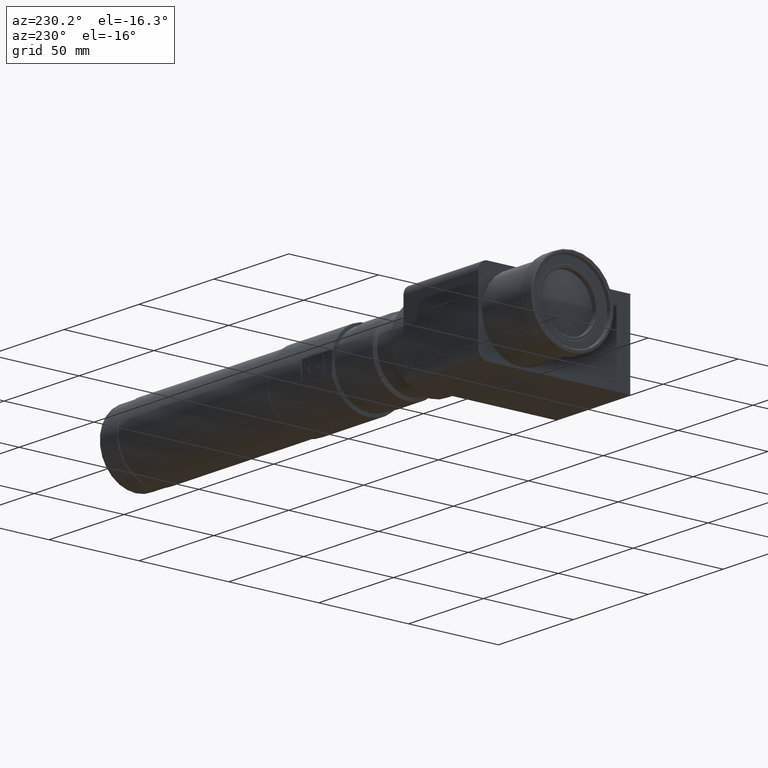
[diagram: clean part render]
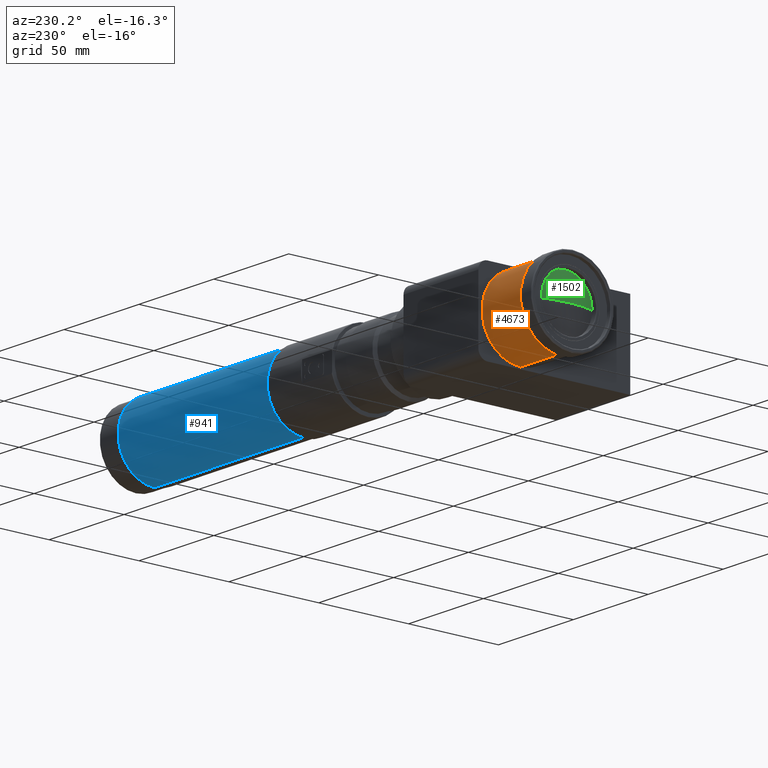
[diagram: same view with three faces highlighted in distinct colors, each labeled with its STEP entity id]
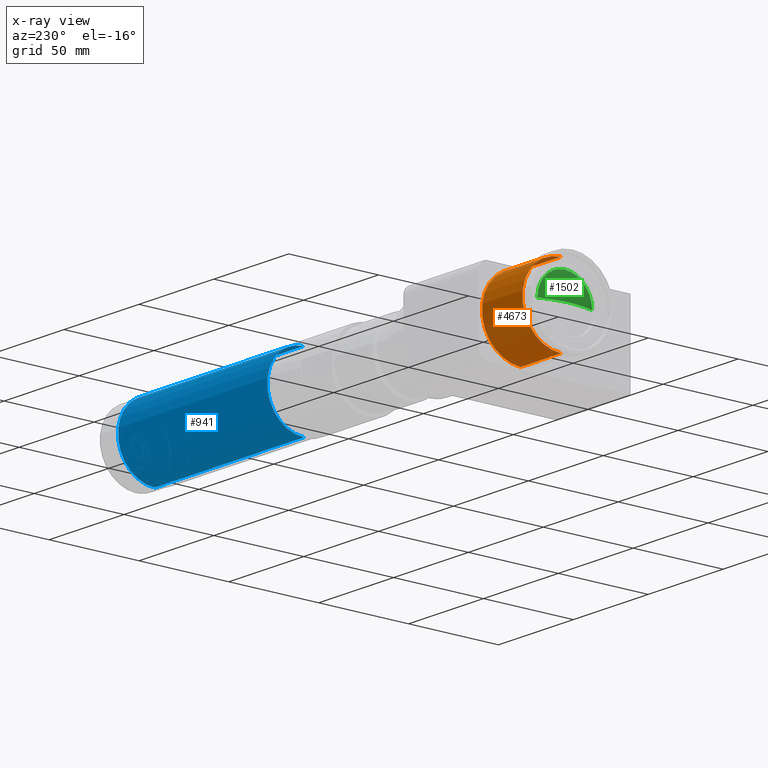
[diagram: x-ray of the same camera — body ghosted, the three highlighted faces saturated]
A machine part, auxiliary view with three faces highlighted in distinct colors.
The next image is the same camera in x-ray (body ghosted, the three faces saturated) — at least one of them is partly hidden behind the body in this view.
Their STEP definitions:

[orange] entity #4673 — the highlighted cylindrical surface (partial cylindrical patch) has radius 21.5 mm, axis along (1, -0, -0).
#85 = CIRCLE ( 'NONE', #1812, 21.50000000000170500 ) ;
#108 = FACE_OUTER_BOUND ( 'NONE', #1068, .T. ) ;
#332 = VECTOR ( 'NONE', #1806, 1000.000000000000000 ) ;
#679 = DIRECTION ( 'NONE',  ( 1.000000000000000000, -0.0000000000000000000, -0.0000000000000000000 ) ) ;
#750 = ORIENTED_EDGE ( 'NONE', *, *, #992, .T. ) ;
#914 = ORIENTED_EDGE ( 'NONE', *, *, #1069, .F. ) ;
#934 = DIRECTION ( 'NONE',  ( 0.0000000000000000000, 0.0000000000000000000, -1.000000000000000000 ) ) ;
#992 = EDGE_CURVE ( 'NONE', #2932, #1675, #85, .T. ) ;
#1060 = VERTEX_POINT ( 'NONE', #1981 ) ;
#1068 = EDGE_LOOP ( 'NONE', ( #750, #5354, #914, #3671 ) ) ;
#1069 = EDGE_CURVE ( 'NONE', #4390, #1060, #3812, .T. ) ;
#1196 = EDGE_CURVE ( 'NONE', #1675, #1060, #2857, .T. ) ;
#1260 = CARTESIAN_POINT ( 'NONE',  ( 8.152902710846454700, 0.0000000000000000000, 0.0000000000000000000 ) ) ;
#1551 = EDGE_CURVE ( 'NONE', #2932, #4390, #4514, .T. ) ;
#1576 = CARTESIAN_POINT ( 'NONE',  ( 35.15290271084642600, 0.0000000000000000000, 0.0000000000000000000 ) ) ;
#1675 = VERTEX_POINT ( 'NONE', #2047 ) ;
#1686 = DIRECTION ( 'NONE',  ( 0.0000000000000000000, 0.0000000000000000000, -1.000000000000000000 ) ) ;
#1806 = DIRECTION ( 'NONE',  ( 1.000000000000000000, -0.0000000000000000000, -0.0000000000000000000 ) ) ;
#1812 = AXIS2_PLACEMENT_3D ( 'NONE', #1260, #4215, #1686 ) ;
#1924 = CARTESIAN_POINT ( 'NONE',  ( 8.152902710846454700, 0.0000000000000000000, -21.50000000000170500 ) ) ;
#1981 = CARTESIAN_POINT ( 'NONE',  ( 35.15290271084642600, 2.632990618167018300E-015, 21.50000000000170500 ) ) ;
#2005 = VECTOR ( 'NONE', #679, 1000.000000000000000 ) ;
#2006 = DIRECTION ( 'NONE',  ( 0.0000000000000000000, 0.0000000000000000000, -1.000000000000000000 ) ) ;
#2047 = CARTESIAN_POINT ( 'NONE',  ( 8.152902710846454700, 2.632990618167018300E-015, 21.50000000000170500 ) ) ;
#2857 = LINE ( 'NONE', #4696, #332 ) ;
#2932 = VERTEX_POINT ( 'NONE', #1924 ) ;
#3030 = CARTESIAN_POINT ( 'NONE',  ( 291.8642620101889500, 0.0000000000000000000, 0.0000000000000000000 ) ) ;
#3469 = DIRECTION ( 'NONE',  ( 1.000000000000000000, -0.0000000000000000000, -0.0000000000000000000 ) ) ;
#3506 = AXIS2_PLACEMENT_3D ( 'NONE', #1576, #4532, #2006 ) ;
#3671 = ORIENTED_EDGE ( 'NONE', *, *, #1551, .F. ) ;
#3812 = CIRCLE ( 'NONE', #3506, 21.50000000000170500 ) ;
#4071 = CARTESIAN_POINT ( 'NONE',  ( 35.15290271084642600, 0.0000000000000000000, -21.50000000000170500 ) ) ;
#4215 = DIRECTION ( 'NONE',  ( 1.000000000000000000, -0.0000000000000000000, -0.0000000000000000000 ) ) ;
#4390 = VERTEX_POINT ( 'NONE', #4071 ) ;
#4514 = LINE ( 'NONE', #5314, #2005 ) ;
#4532 = DIRECTION ( 'NONE',  ( 1.000000000000000000, -0.0000000000000000000, -0.0000000000000000000 ) ) ;
#4673 = ADVANCED_FACE ( 'NONE', ( #108 ), #5472, .T. ) ;
#4696 = CARTESIAN_POINT ( 'NONE',  ( 291.8642620101889500, 2.632990618167018300E-015, 21.50000000000170500 ) ) ;
#5296 = AXIS2_PLACEMENT_3D ( 'NONE', #3030, #3469, #934 ) ;
#5314 = CARTESIAN_POINT ( 'NONE',  ( 291.8642620101889500, 0.0000000000000000000, -21.50000000000170500 ) ) ;
#5354 = ORIENTED_EDGE ( 'NONE', *, *, #1196, .T. ) ;
#5472 = CYLINDRICAL_SURFACE ( 'NONE', #5296, 21.50000000000170500 ) ;

[blue] entity #941 — the highlighted cylindrical surface (partial cylindrical patch) has radius 20.32 mm, axis along (1, -0, -0).
#161 = CARTESIAN_POINT ( 'NONE',  ( 279.6582620101893900, 0.0000000000000000000, 20.31999999999994300 ) ) ;
#220 = VERTEX_POINT ( 'NONE', #4421 ) ;
#391 = AXIS2_PLACEMENT_3D ( 'NONE', #1141, #4102, #1568 ) ;
#396 = DIRECTION ( 'NONE',  ( 1.000000000000000000, -0.0000000000000000000, -0.0000000000000000000 ) ) ;
#407 = DIRECTION ( 'NONE',  ( 1.000000000000000000, -0.0000000000000000000, -0.0000000000000000000 ) ) ;
#637 = LINE ( 'NONE', #2517, #2892 ) ;
#788 = CARTESIAN_POINT ( 'NONE',  ( 291.8642620101889500, 0.0000000000000000000, 0.0000000000000000000 ) ) ;
#941 = ADVANCED_FACE ( 'NONE', ( #3472 ), #1959, .T. ) ;
#954 = CIRCLE ( 'NONE', #1273, 20.31999999999994300 ) ;
#1141 = CARTESIAN_POINT ( 'NONE',  ( 179.9582620101893200, 0.0000000000000000000, 0.0000000000000000000 ) ) ;
#1222 = DIRECTION ( 'NONE',  ( 0.0000000000000000000, 0.0000000000000000000, -1.000000000000000000 ) ) ;
#1252 = AXIS2_PLACEMENT_3D ( 'NONE', #788, #3758, #1222 ) ;
#1273 = AXIS2_PLACEMENT_3D ( 'NONE', #2949, #407, #3381 ) ;
#1447 = ORIENTED_EDGE ( 'NONE', *, *, #2718, .T. ) ;
#1526 = CARTESIAN_POINT ( 'NONE',  ( 279.6582620101893900, 2.488482295867414600E-015, -20.31999999999994300 ) ) ;
#1568 = DIRECTION ( 'NONE',  ( 0.0000000000000000000, 0.0000000000000000000, -1.000000000000000000 ) ) ;
#1596 = CIRCLE ( 'NONE', #391, 20.31999999999994300 ) ;
#1959 = CYLINDRICAL_SURFACE ( 'NONE', #1252, 20.31999999999994300 ) ;
#2235 = VERTEX_POINT ( 'NONE', #5228 ) ;
#2517 = CARTESIAN_POINT ( 'NONE',  ( 291.8642620101889500, 2.488482295867414600E-015, 20.31999999999994300 ) ) ;
#2718 = EDGE_CURVE ( 'NONE', #220, #2235, #1596, .T. ) ;
#2756 = VECTOR ( 'NONE', #4018, 1000.000000000000000 ) ;
#2892 = VECTOR ( 'NONE', #396, 1000.000000000000000 ) ;
#2949 = CARTESIAN_POINT ( 'NONE',  ( 279.6582620101893900, 0.0000000000000000000, 0.0000000000000000000 ) ) ;
#2974 = VERTEX_POINT ( 'NONE', #1526 ) ;
#3071 = EDGE_CURVE ( 'NONE', #2235, #5208, #637, .T. ) ;
#3381 = DIRECTION ( 'NONE',  ( 0.0000000000000000000, 0.0000000000000000000, -1.000000000000000000 ) ) ;
#3472 = FACE_OUTER_BOUND ( 'NONE', #4607, .T. ) ;
#3609 = ORIENTED_EDGE ( 'NONE', *, *, #5485, .F. ) ;
#3758 = DIRECTION ( 'NONE',  ( 1.000000000000000000, -0.0000000000000000000, -0.0000000000000000000 ) ) ;
#4018 = DIRECTION ( 'NONE',  ( 1.000000000000000000, -0.0000000000000000000, -0.0000000000000000000 ) ) ;
#4022 = LINE ( 'NONE', #4437, #2756 ) ;
#4102 = DIRECTION ( 'NONE',  ( 1.000000000000000000, -0.0000000000000000000, -0.0000000000000000000 ) ) ;
#4124 = EDGE_CURVE ( 'NONE', #2974, #5208, #954, .T. ) ;
#4421 = CARTESIAN_POINT ( 'NONE',  ( 179.9582620101893200, 0.0000000000000000000, -20.31999999999994300 ) ) ;
#4437 = CARTESIAN_POINT ( 'NONE',  ( 291.8642620101889500, 0.0000000000000000000, -20.31999999999994300 ) ) ;
#4607 = EDGE_LOOP ( 'NONE', ( #1447, #4757, #4922, #3609 ) ) ;
#4757 = ORIENTED_EDGE ( 'NONE', *, *, #3071, .T. ) ;
#4922 = ORIENTED_EDGE ( 'NONE', *, *, #4124, .F. ) ;
#5208 = VERTEX_POINT ( 'NONE', #161 ) ;
#5228 = CARTESIAN_POINT ( 'NONE',  ( 179.9582620101893200, 2.488482295867414600E-015, 20.31999999999994300 ) ) ;
#5485 = EDGE_CURVE ( 'NONE', #220, #2974, #4022, .T. ) ;

[green] entity #1502 — the highlighted spherical surface has radius 47 mm.
#80 = EDGE_LOOP ( 'NONE', ( #2847, #2605, #3800, #5131 ) ) ;
#97 = EDGE_CURVE ( 'NONE', #3838, #4346, #3775, .T. ) ;
#896 = DIRECTION ( 'NONE',  ( 0.0000000000000000000, 0.0000000000000000000, -1.000000000000000000 ) ) ;
#1041 = CARTESIAN_POINT ( 'NONE',  ( 50.14290271084704600, 1.387778780781445700E-014, 0.0000000000000000000 ) ) ;
#1093 = AXIS2_PLACEMENT_3D ( 'NONE', #4822, #2288, #5230 ) ;
#1306 = VERTEX_POINT ( 'NONE', #5220 ) ;
#1477 = DIRECTION ( 'NONE',  ( 0.0000000000000000000, -1.000000000000000000, 1.224646799147353200E-016 ) ) ;
#1502 = ADVANCED_FACE ( 'NONE', ( #2252 ), #5486, .T. ) ;
#1503 = EDGE_CURVE ( 'NONE', #1306, #3733, #4370, .T. ) ;
#1914 = CARTESIAN_POINT ( 'NONE',  ( 5.685760427519836600, -15.25000000000000400, 1.867586368699715700E-015 ) ) ;
#1971 = CARTESIAN_POINT ( 'NONE',  ( 5.685760427519836600, 0.0000000000000000000, 0.0000000000000000000 ) ) ;
#2170 = DIRECTION ( 'NONE',  ( 0.0000000000000000000, 1.000000000000000000, 0.0000000000000000000 ) ) ;
#2174 = AXIS2_PLACEMENT_3D ( 'NONE', #3437, #896, #3871 ) ;
#2248 = EDGE_CURVE ( 'NONE', #1306, #4346, #4961, .T. ) ;
#2252 = FACE_OUTER_BOUND ( 'NONE', #80, .T. ) ;
#2288 = DIRECTION ( 'NONE',  ( 1.000000000000000000, -0.0000000000000000000, -0.0000000000000000000 ) ) ;
#2404 = DIRECTION ( 'NONE',  ( 0.0000000000000000000, 0.0000000000000000000, -1.000000000000000000 ) ) ;
#2460 = AXIS2_PLACEMENT_3D ( 'NONE', #4274, #2574, #2170 ) ;
#2574 = DIRECTION ( 'NONE',  ( 0.0000000000000000000, -0.0000000000000000000, 1.000000000000000000 ) ) ;
#2605 = ORIENTED_EDGE ( 'NONE', *, *, #2248, .T. ) ;
#2694 = CIRCLE ( 'NONE', #5315, 15.25000000000001400 ) ;
#2703 = EDGE_CURVE ( 'NONE', #3733, #3838, #2694, .T. ) ;
#2847 = ORIENTED_EDGE ( 'NONE', *, *, #1503, .F. ) ;
#2983 = AXIS2_PLACEMENT_3D ( 'NONE', #1041, #4009, #1477 ) ;
#3437 = CARTESIAN_POINT ( 'NONE',  ( 50.14290271084704600, 1.387778780781445700E-014, 0.0000000000000000000 ) ) ;
#3733 = VERTEX_POINT ( 'NONE', #4434 ) ;
#3775 = CIRCLE ( 'NONE', #1093, 15.25000000000001400 ) ;
#3777 = CARTESIAN_POINT ( 'NONE',  ( 5.685760427519836600, 1.867586368699715300E-015, 15.25000000000001400 ) ) ;
#3800 = ORIENTED_EDGE ( 'NONE', *, *, #97, .F. ) ;
#3838 = VERTEX_POINT ( 'NONE', #3777 ) ;
#3871 = DIRECTION ( 'NONE',  ( -1.000000000000000000, 0.0000000000000000000, 0.0000000000000000000 ) ) ;
#4009 = DIRECTION ( 'NONE',  ( 0.0000000000000000000, 1.224646799147353200E-016, 1.000000000000000000 ) ) ;
#4274 = CARTESIAN_POINT ( 'NONE',  ( 50.14290271084704600, 1.387778780781445700E-014, 0.0000000000000000000 ) ) ;
#4346 = VERTEX_POINT ( 'NONE', #1914 ) ;
#4370 = CIRCLE ( 'NONE', #2174, 47.00000000000000000 ) ;
#4434 = CARTESIAN_POINT ( 'NONE',  ( 5.685760427519836600, 15.25000000000001800, 0.0000000000000000000 ) ) ;
#4822 = CARTESIAN_POINT ( 'NONE',  ( 5.685760427519836600, 0.0000000000000000000, 0.0000000000000000000 ) ) ;
#4921 = DIRECTION ( 'NONE',  ( 1.000000000000000000, -0.0000000000000000000, -0.0000000000000000000 ) ) ;
#4961 = CIRCLE ( 'NONE', #2983, 47.00000000000000000 ) ;
#5131 = ORIENTED_EDGE ( 'NONE', *, *, #2703, .F. ) ;
#5220 = CARTESIAN_POINT ( 'NONE',  ( 3.142902710847043800, 1.675570778581073600E-014, 0.0000000000000000000 ) ) ;
#5230 = DIRECTION ( 'NONE',  ( 0.0000000000000000000, 0.0000000000000000000, -1.000000000000000000 ) ) ;
#5315 = AXIS2_PLACEMENT_3D ( 'NONE', #1971, #4921, #2404 ) ;
#5486 = SPHERICAL_SURFACE ( 'NONE', #2460, 47.00000000000000000 ) ;